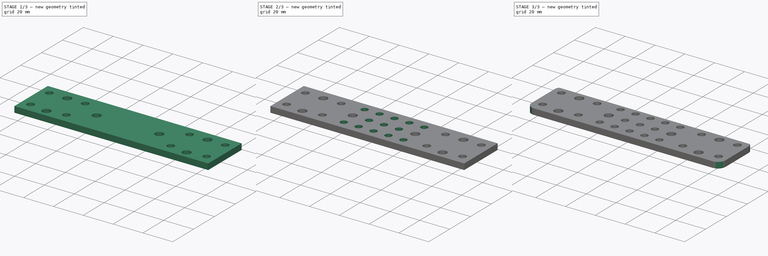
[diagram: build sequence overview — one tinted view per stage of 3, left to right]
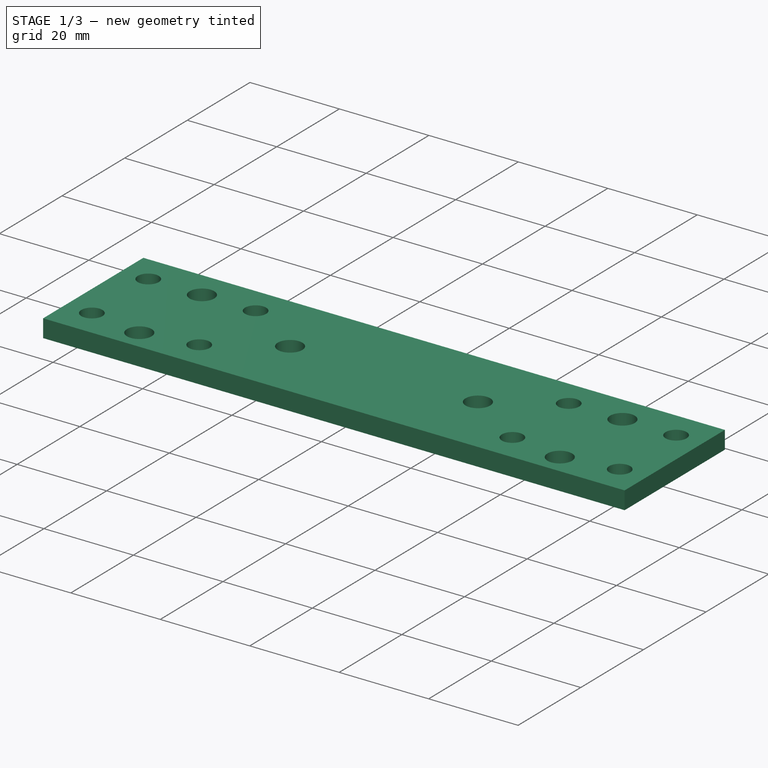
[diagram: stage 1 of 3 — iso view after this stage's code; geometry added in this stage tinted green]
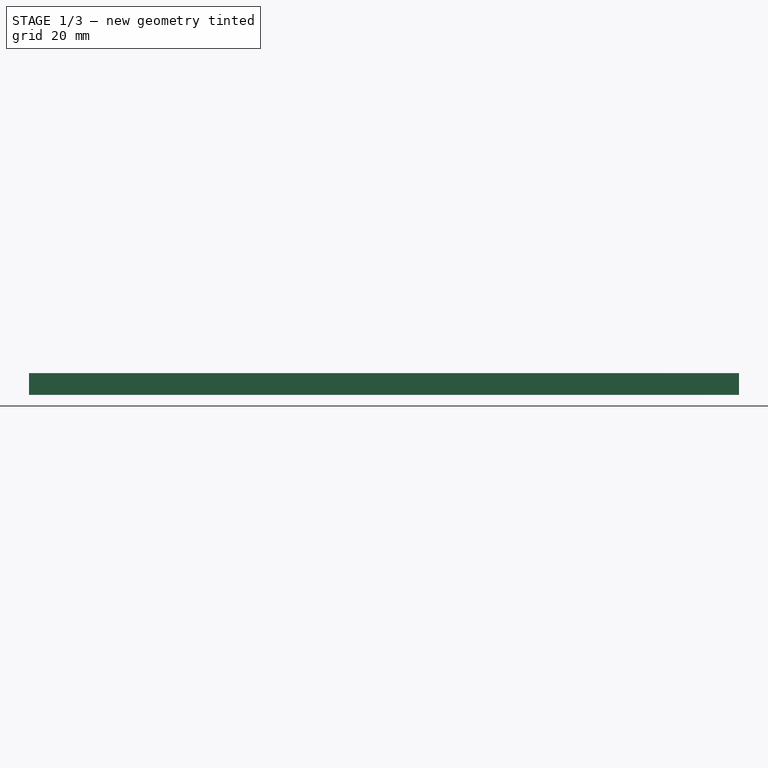
[diagram: stage 1 of 3 — front view after this stage's code; geometry added in this stage tinted green]
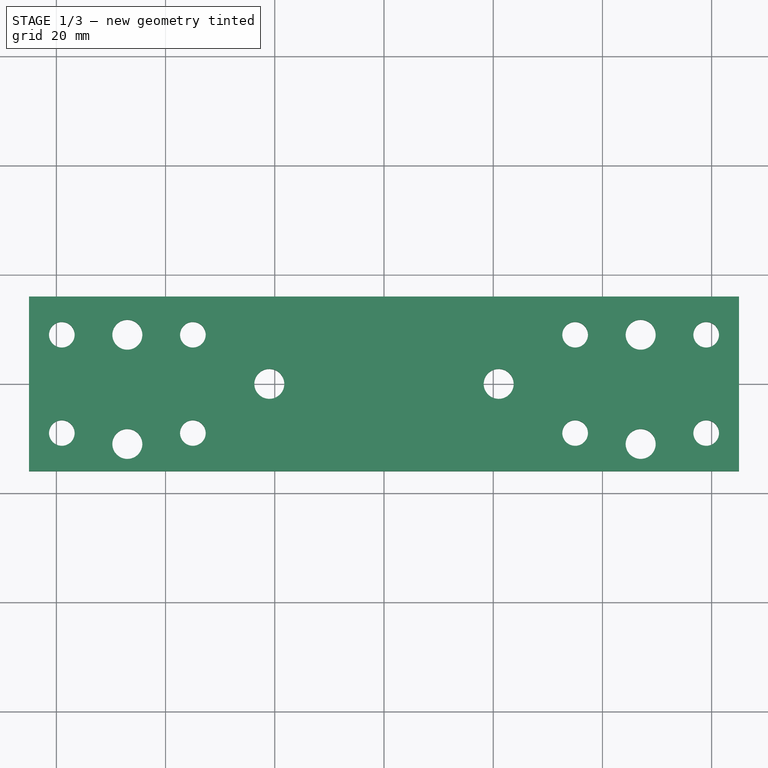
[diagram: stage 1 of 3 — top view after this stage's code; geometry added in this stage tinted green]
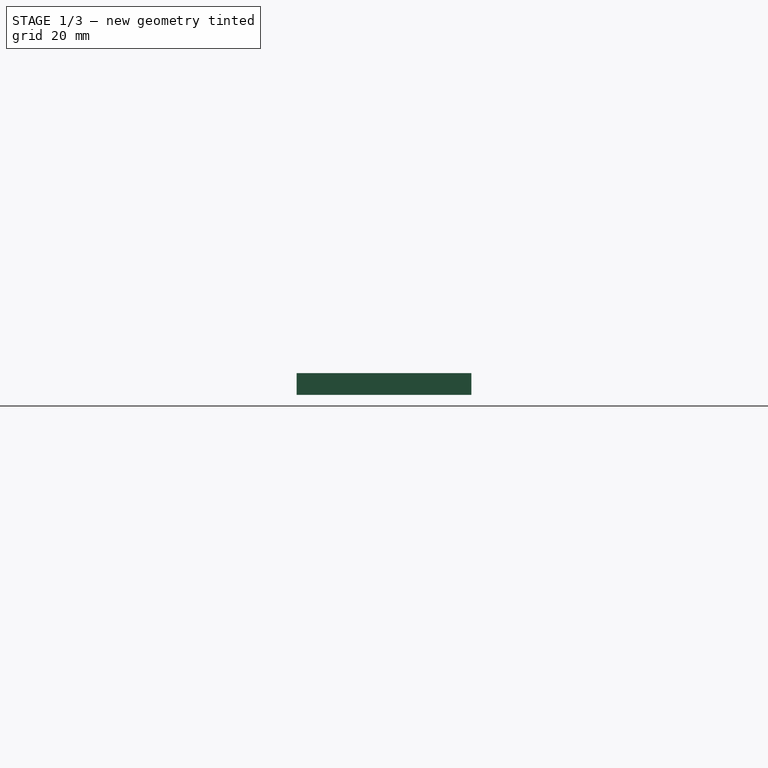
[diagram: stage 1 of 3 — right view after this stage's code; geometry added in this stage tinted green]
FCSTD DOCUMENT  (FreeCAD 0.16R6707 (Git))
Label: spindle support top plate 2
License: All rights reserved
LicenseURL: http://en.wikipedia.org/wiki/All_rights_reserved
objects: Sketcher::SketchObject×3, PartDesign::Pocket×2, PartDesign::Pad×1, PartDesign::Chamfer×1, PartDesign::Fillet×1
note: 11 computed .brp shape members not serialized (recipe doc carries the construction recipe); baked Part::Feature solids carry a one-line shape summary decoded from their .brp

FEATURE [Sketcher::SketchObject] Sketch  label="overall"
  sketch-geometry (4):
    g0: LineSegment StartX=-65 StartY=16 StartZ=0 EndX=65 EndY=16 EndZ=0
    g1: LineSegment StartX=65 StartY=16 StartZ=0 EndX=65 EndY=-16 EndZ=0
    g2: LineSegment StartX=65 StartY=-16 StartZ=0 EndX=-65 EndY=-16 EndZ=0
    g3: LineSegment StartX=-65 StartY=-16 StartZ=0 EndX=-65 EndY=16 EndZ=0
  constraints (12):
    c: Coincident(g0,g1)
    c: Coincident(g1,g2)
    c: Coincident(g2,g3)
    c: Coincident(g3,g0)
    c: Horizontal(g0)
    c: Horizontal(g2)
    c: Vertical(g1)
    c: Vertical(g3)
    c: Symmetric(g0,g0,g-2)
    c: DistanceX(g0,g0) = 130
    c: DistanceY(g3,g3) = 32
    c: Symmetric(g0,g2,g-1)
FEATURE [PartDesign::Pad] Pad
  Length = 4
  Length2 = 100
  Sketch = -> Sketch
  Type = 0
FEATURE [Sketcher::SketchObject] Sketch001  label="support holes"
  Placement = pos=(0,0,4) rot=(0,0,1;0rad)
  Support = -> Pad [Face6]
  sketch-geometry (26):
    g0: LineSegment [constr] StartX=-59 StartY=9 StartZ=0 EndX=59 EndY=9 EndZ=0
    g1: LineSegment [constr] StartX=59 StartY=9 StartZ=0 EndX=59 EndY=-46 EndZ=0
    g2: LineSegment [constr] StartX=-58.9931 StartY=-46 StartZ=0 EndX=-59 EndY=9 EndZ=0
    g3: LineSegment [constr] StartX=-35 StartY=-9 StartZ=0 EndX=35 EndY=-9 EndZ=0
    g4: LineSegment [constr] StartX=35 StartY=-9 StartZ=0 EndX=35 EndY=9 EndZ=0
    g5: LineSegment [constr] StartX=-35 StartY=-28 StartZ=0 EndX=-35 EndY=-9 EndZ=0
    g6: Circle CenterX=-35 CenterY=9 CenterZ=0 NormalX=0 NormalY=0 NormalZ=1 Radius=2.35
    g7: Circle CenterX=-58.9977 CenterY=-9 CenterZ=0 NormalX=0 NormalY=0 NormalZ=1 Radius=2.35
    g8: Circle CenterX=-59 CenterY=9 CenterZ=0 NormalX=0 NormalY=0 NormalZ=1 Radius=2.35
    g9: Circle CenterX=35 CenterY=9 CenterZ=0 NormalX=0 NormalY=0 NormalZ=1 Radius=2.35
    g10: Circle CenterX=59 CenterY=-9 CenterZ=0 NormalX=0 NormalY=0 NormalZ=1 Radius=2.35
    g11: Circle CenterX=59 CenterY=9 CenterZ=0 NormalX=0 NormalY=0 NormalZ=1 Radius=2.35
    g12: LineSegment [constr] StartX=-47 StartY=63.724 StartZ=0 EndX=-47 EndY=-60.0684 EndZ=0
    g13: LineSegment [constr] StartX=47 StartY=59.8365 StartZ=0 EndX=47 EndY=-50.1635 EndZ=0
    g14: Circle CenterX=-47 CenterY=9 CenterZ=0 NormalX=0 NormalY=0 NormalZ=1 Radius=2.75
    g15: Circle CenterX=-47 CenterY=-11 CenterZ=0 NormalX=0 NormalY=0 NormalZ=1 Radius=2.75
    g16: Circle CenterX=47 CenterY=9 CenterZ=0 NormalX=0 NormalY=0 NormalZ=1 Radius=2.75
    g17: Circle CenterX=47 CenterY=-11 CenterZ=0 NormalX=0 NormalY=0 NormalZ=1 Radius=2.75
    g18: LineSegment [constr] StartX=-60 StartY=0 StartZ=0 EndX=59.9989 EndY=0 EndZ=0
    g19: Circle CenterX=-21 CenterY=0 CenterZ=0 NormalX=0 NormalY=0 NormalZ=1 Radius=2.75
    g20: Circle CenterX=21 CenterY=0 CenterZ=0 NormalX=0 NormalY=0 NormalZ=1 Radius=2.75
    g21: Circle CenterX=-35 CenterY=-9 CenterZ=0 NormalX=0 NormalY=0 NormalZ=1 Radius=2.35
    g22: Circle CenterX=35 CenterY=-9 CenterZ=0 NormalX=0 NormalY=0 NormalZ=1 Radius=2.35
    g23: LineSegment [constr] StartX=30 StartY=19 StartZ=0 EndX=65.7035 EndY=19 EndZ=0
    g24: LineSegment [constr] StartX=-64.62 StartY=19 StartZ=0 EndX=94.658 EndY=19 EndZ=0
    g25: LineSegment [constr] StartX=-80 StartY=15 StartZ=0 EndX=-25.8285 EndY=15 EndZ=0
  constraints (60):
    c: Coincident(g0,g1)
    c: Coincident(g2,g0)
    c: Vertical(g1)
    c: Symmetric(g0,g0,g-2)
    c: Symmetric(g3,g3,g-2)
    c: Symmetric(g4,g3,g-1)
    c: DistanceX(g3,g0) = 24
    c: Vertical(g4)
    c: Vertical(g5)
    c: DistanceY(g3,g0) = 18
    c: Coincident(g3,g5)
    c: Coincident(g3,g4)
    c: Symmetric(g19,g20,g-2)
    c: DistanceX(g19,g20) = 42
    c: DistanceX(g20,g3) = 14
    c: DistanceX(g13,g0) = 12
    c: Vertical(g13)
    c: DistanceX(g0,g12) = 12
    c: Vertical(g12)
    c: Coincident(g8,g0)
    c: PointOnObject(g7,g2)
    c: DistanceY(g18,g0) = 9
    c: Coincident(g11,g0)
    c: PointOnObject(g14,g12)
    c: PointOnObject(g14,g0)
    c: PointOnObject(g16,g0)
    c: PointOnObject(g16,g13)
    c: PointOnObject(g10,g3)
    c: PointOnObject(g10,g1)
    c: PointOnObject(g9,g4)
    c: PointOnObject(g9,g0)
    c: PointOnObject(g6,g0)
    c: PointOnObject(g6,g5)
    c: PointOnObject(g17,g13)
    c: DistanceY(g17,g16) = 20
    c: PointOnObject(g15,g12)
    c: DistanceY(g15,g14) = 20
    c: Equal(g19,g20)
    c: Radius(g19) = 2.75
    c: Coincident(g21,g3)
    c: Coincident(g22,g3)
    c: Equal(g8,g6)
    c: Equal(g6,g21)
    c: Equal(g21,g7)
    c: Equal(g9,g11)
    c: Equal(g11,g22)
    c: Equal(g22,g10)
    c: Radius(g21) = 2.35
    c: Equal(g14,g15)
    c: Equal(g16,g17)
    c: Radius(g15) = 2.75
    c: Horizontal(g23)
    c: Horizontal(g18)
    c: DistanceY(g16,g23) = 10
    c: PointOnObject(g19,g18)
    c: Horizontal(g24)
    c: Horizontal(g25)
    c: DistanceY(g6,g25) = 6
    c: PointOnObject(g18,g-1)
    c: PointOnObject(g7,g3)
FEATURE [PartDesign::Pocket] Pocket
  Length = 5
  Sketch = -> Sketch001
  Type = 1
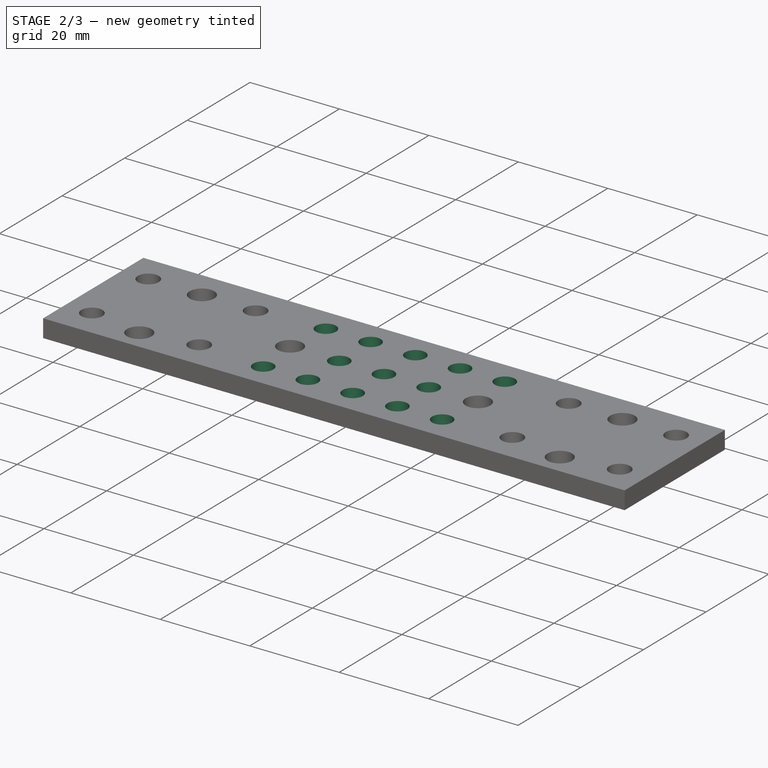
[diagram: stage 2 of 3 — iso view after this stage's code; geometry added in this stage tinted green]
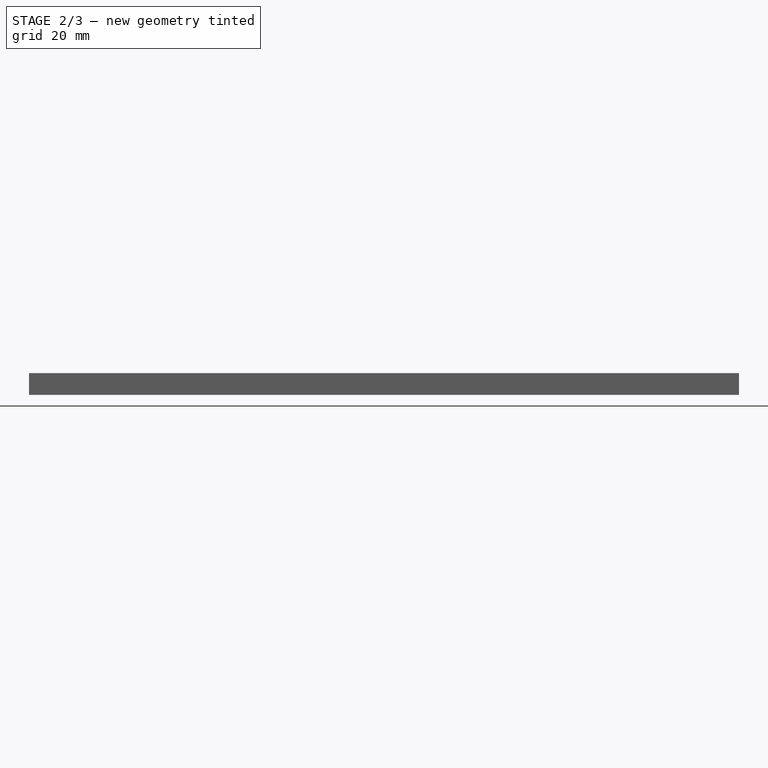
[diagram: stage 2 of 3 — front view after this stage's code; geometry added in this stage tinted green]
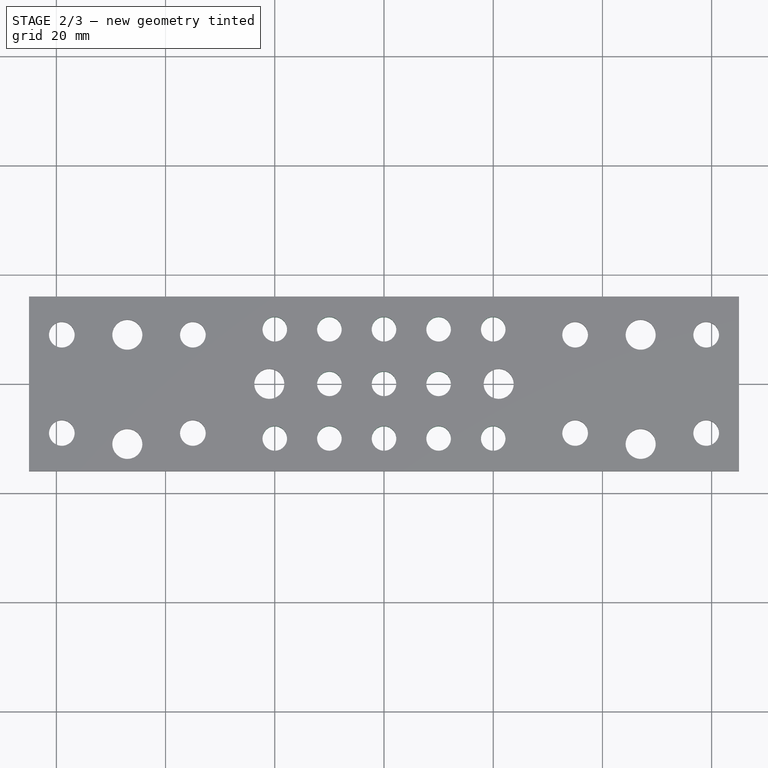
[diagram: stage 2 of 3 — top view after this stage's code; geometry added in this stage tinted green]
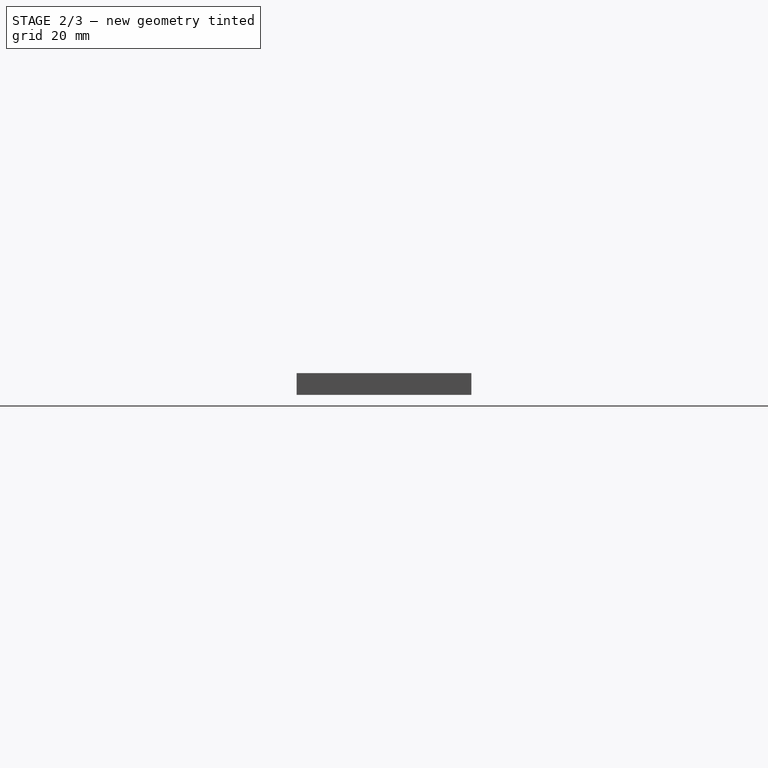
[diagram: stage 2 of 3 — right view after this stage's code; geometry added in this stage tinted green]
FEATURE [Sketcher::SketchObject] Sketch002  label="fill holes"
  Placement = pos=(0,0,4) rot=(0,0,1;0rad)
  Support = -> Pocket [Face5]
  sketch-geometry (13):
    g0: Circle CenterX=-10 CenterY=10 CenterZ=0 NormalX=0 NormalY=0 NormalZ=1 Radius=2.25
    g1: Circle CenterX=-10 CenterY=0 CenterZ=0 NormalX=0 NormalY=0 NormalZ=1 Radius=2.25
    g2: Circle CenterX=10 CenterY=10 CenterZ=0 NormalX=0 NormalY=0 NormalZ=1 Radius=2.25
    g3: Circle CenterX=10 CenterY=0 CenterZ=0 NormalX=0 NormalY=0 NormalZ=1 Radius=2.25
    g4: Circle CenterX=0 CenterY=10 CenterZ=0 NormalX=0 NormalY=0 NormalZ=1 Radius=2.25
    g5: Circle CenterX=0 CenterY=0 CenterZ=0 NormalX=0 NormalY=0 NormalZ=1 Radius=2.25
    g6: Circle CenterX=0 CenterY=-10 CenterZ=0 NormalX=0 NormalY=0 NormalZ=1 Radius=2.25
    g7: Circle CenterX=-10 CenterY=-10 CenterZ=0 NormalX=0 NormalY=0 NormalZ=1 Radius=2.25
    g8: Circle CenterX=10 CenterY=-10 CenterZ=0 NormalX=0 NormalY=0 NormalZ=1 Radius=2.25
    g9: Circle CenterX=-20 CenterY=10 CenterZ=0 NormalX=0 NormalY=0 NormalZ=1 Radius=2.25
    g10: Circle CenterX=20 CenterY=10 CenterZ=0 NormalX=0 NormalY=0 NormalZ=1 Radius=2.25
    g11: Circle CenterX=20 CenterY=-10 CenterZ=0 NormalX=0 NormalY=0 NormalZ=1 Radius=2.25
    g12: Circle CenterX=-20 CenterY=-10 CenterZ=0 NormalX=0 NormalY=0 NormalZ=1 Radius=2.25
  constraints (13):
    c: Radius(g4) = 2.25
    c: Equal(g9,g0)
    c: Equal(g0,g4)
    c: Equal(g4,g2)
    c: Equal(g2,g10)
    c: Equal(g10,g3)
    c: Equal(g3,g5)
    c: Equal(g5,g1)
    c: Equal(g1,g12)
    c: Equal(g12,g7)
    c: Equal(g7,g6)
    c: Equal(g6,g8)
    c: Equal(g8,g11)
FEATURE [PartDesign::Pocket] Pocket001
  Length = 5
  Sketch = -> Sketch002
  Type = 1
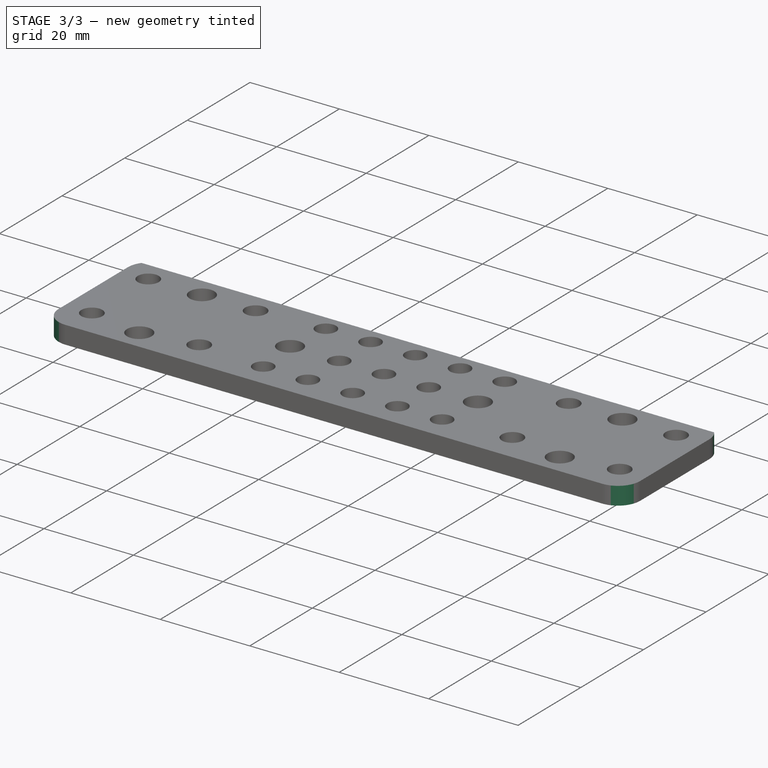
[diagram: stage 3 of 3 — iso view after this stage's code; geometry added in this stage tinted green]
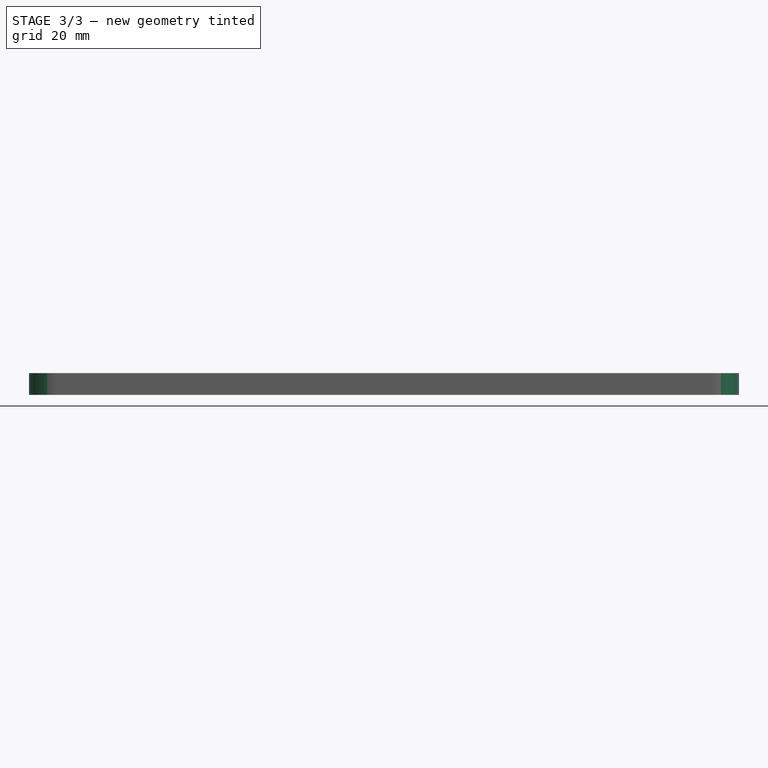
[diagram: stage 3 of 3 — front view after this stage's code; geometry added in this stage tinted green]
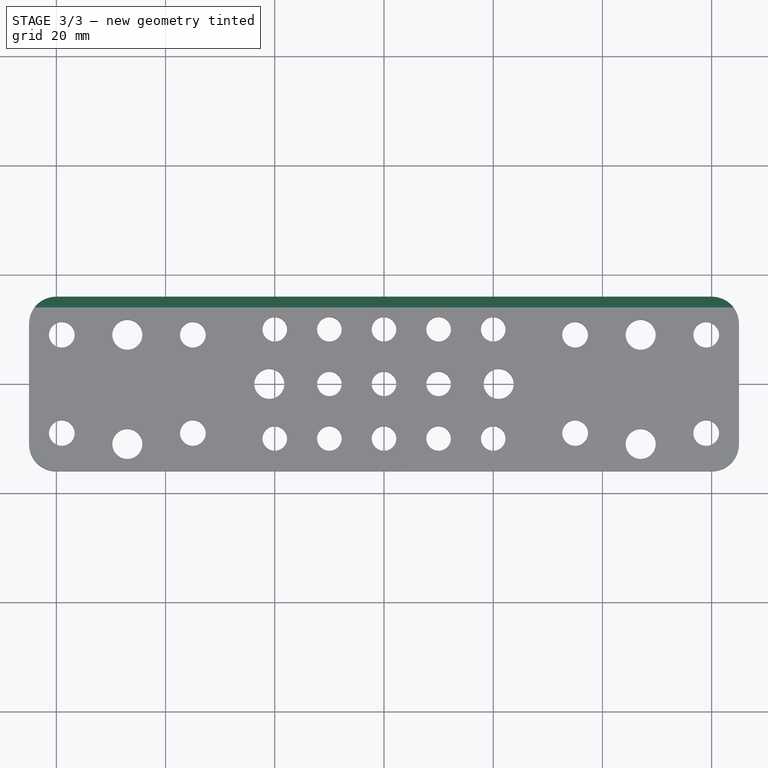
[diagram: stage 3 of 3 — top view after this stage's code; geometry added in this stage tinted green]
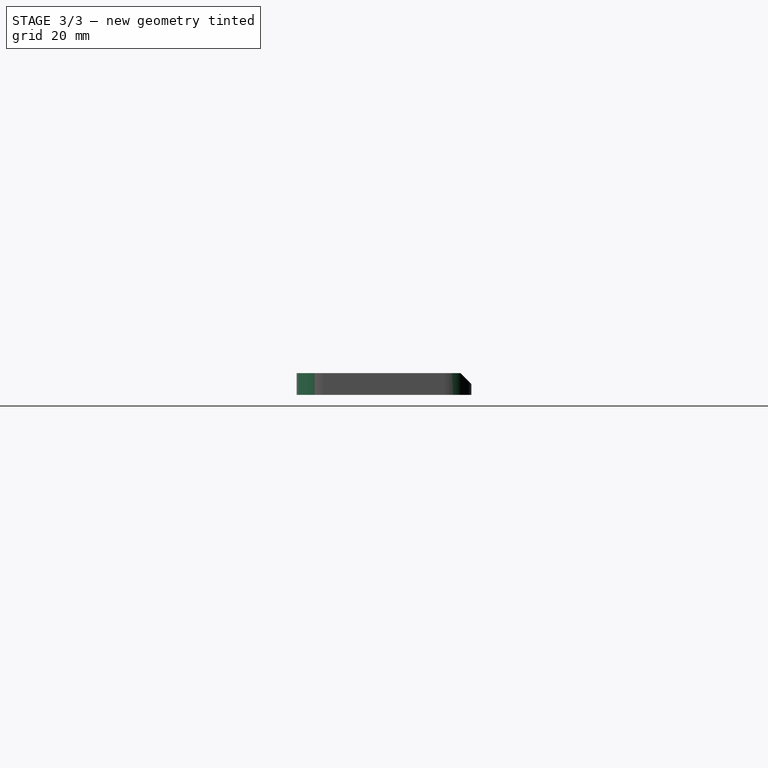
[diagram: stage 3 of 3 — right view after this stage's code; geometry added in this stage tinted green]
FEATURE [PartDesign::Chamfer] Chamfer
  Base = -> Pocket001 [Edge4]
  Size = 2
FEATURE [PartDesign::Fillet] Fillet
  Base = -> Chamfer [Edge1,Edge4,Edge8,Edge41]
  Radius = 5
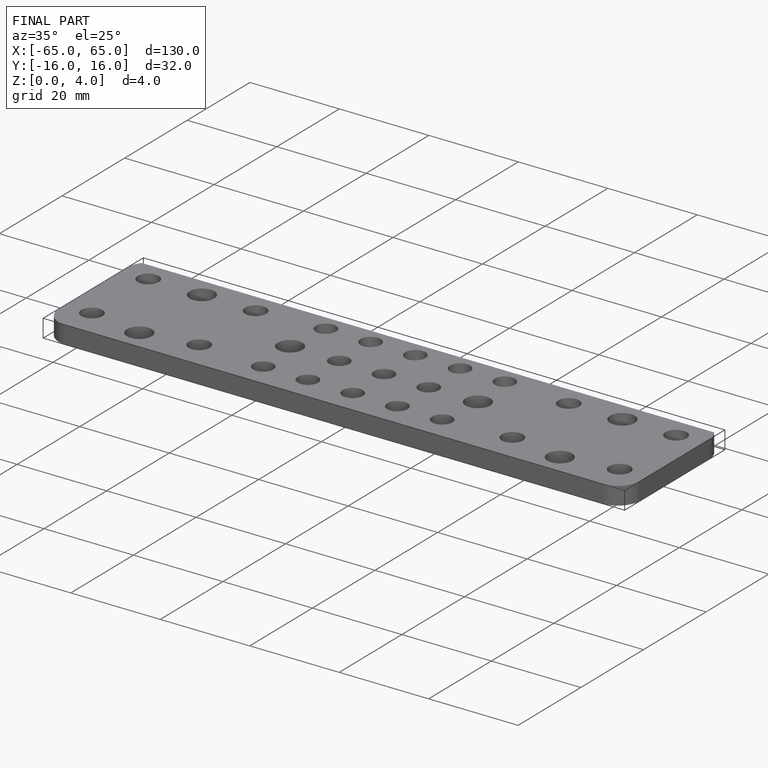
[diagram: finished part — iso view with bounding-box wireframe]
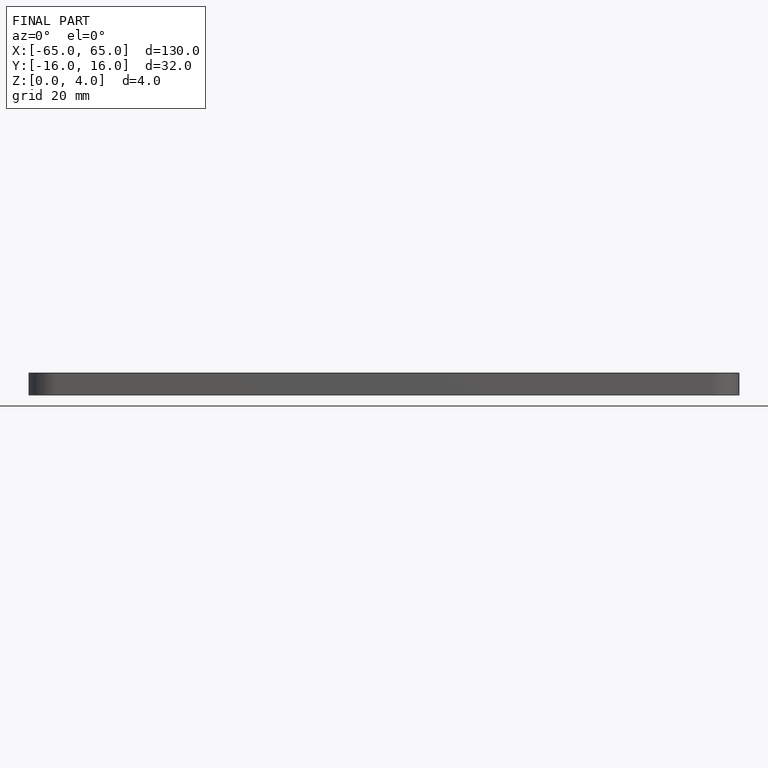
[diagram: finished part — front view with bounding-box wireframe]
